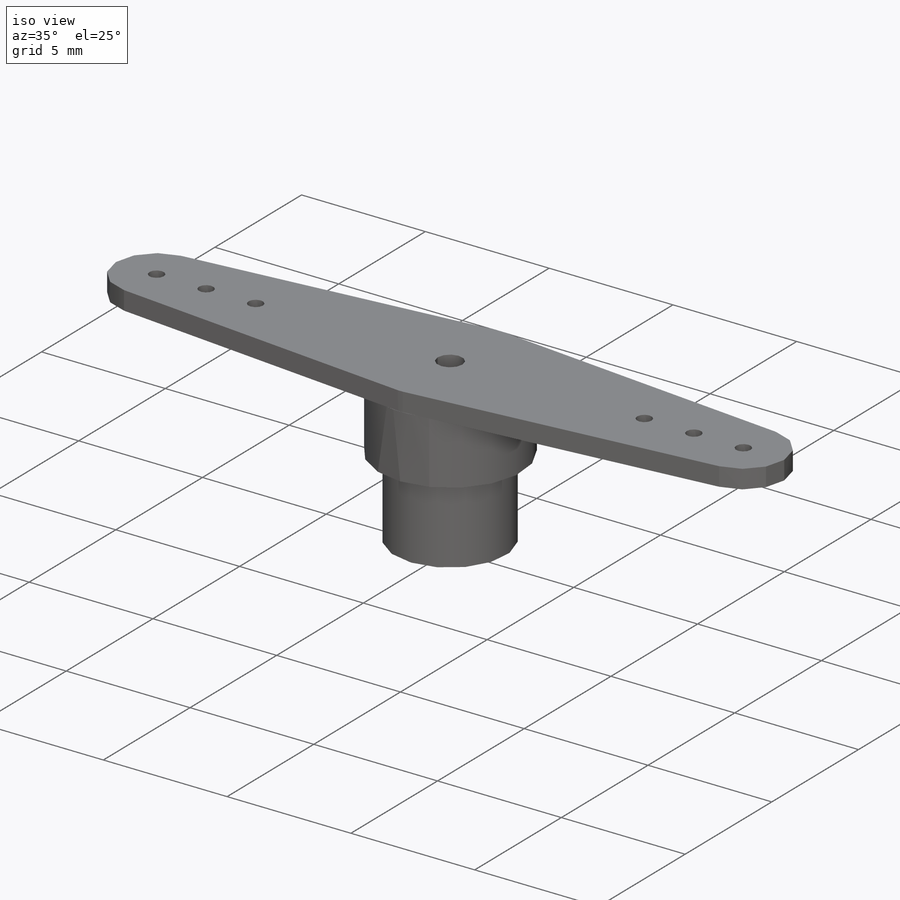
[diagram: iso view]
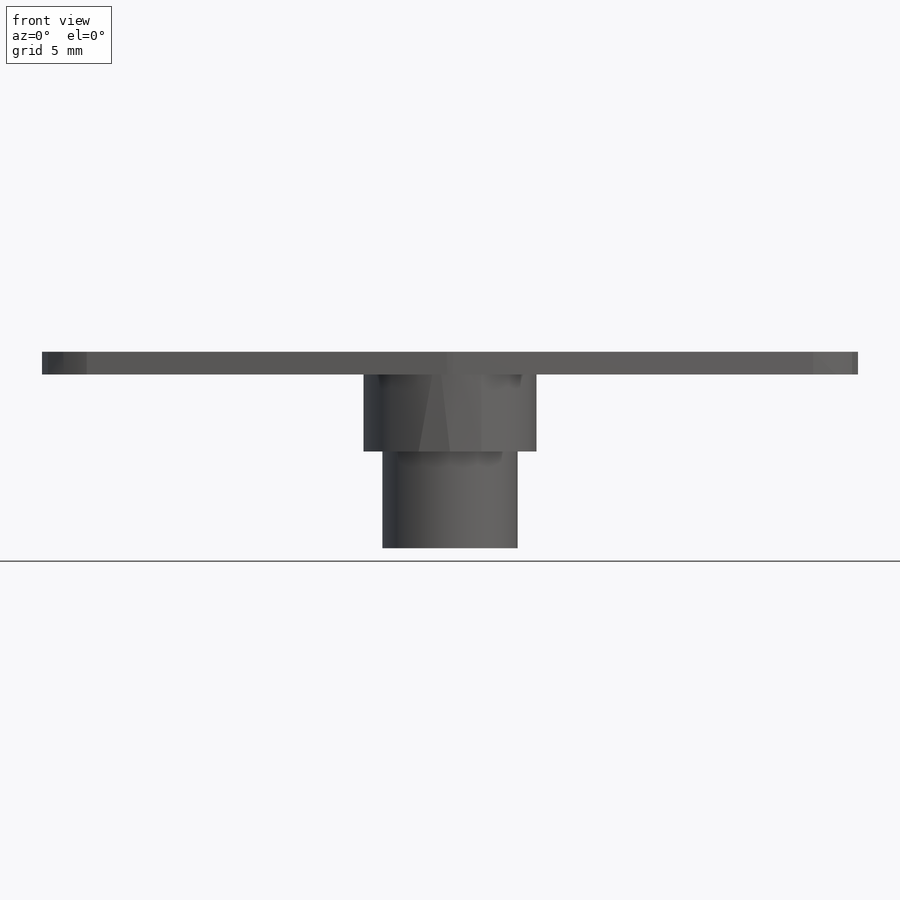
[diagram: front view]
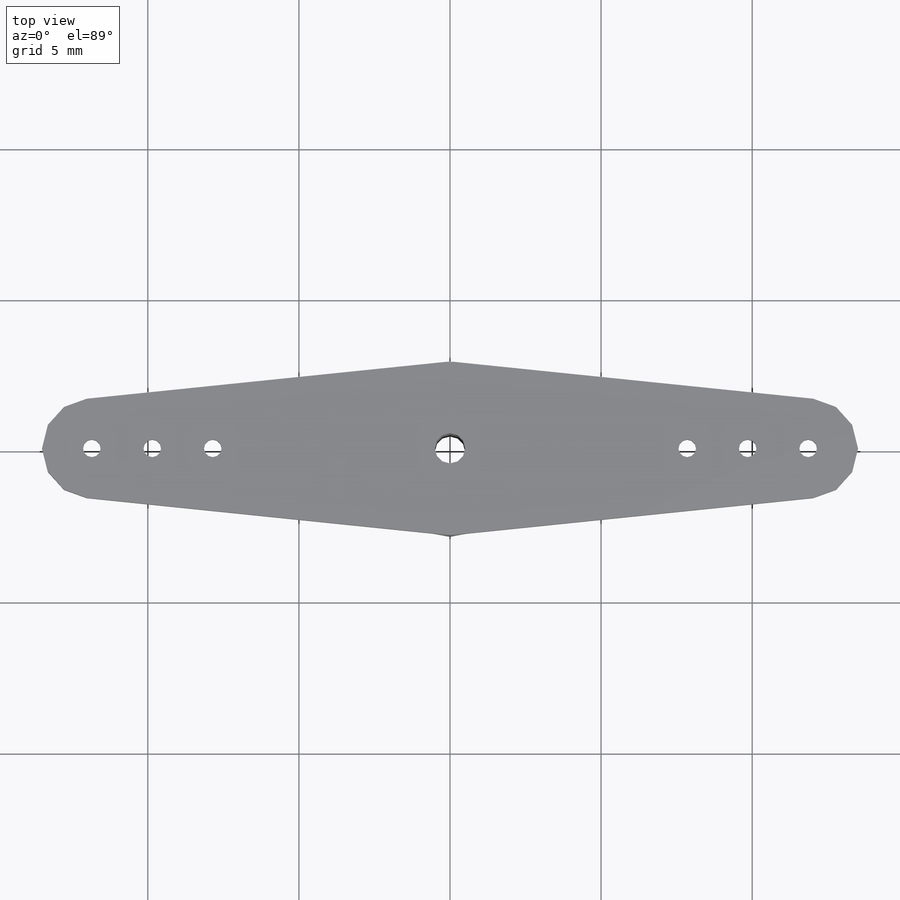
[diagram: top view]
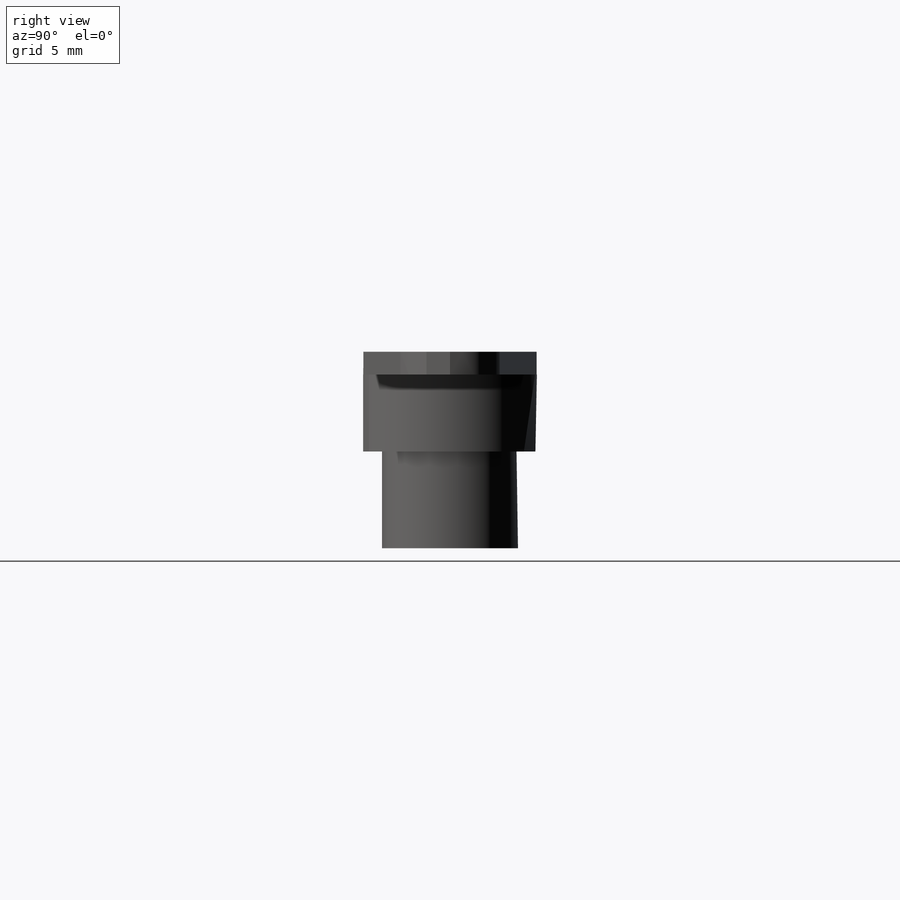
[diagram: right view]
SOLIDWORKS PART (.sldprt)
format: sldprt  version: not decoded by parser v0  size: 218,112 bytes
history: native  units: mm
features: sketch x4, extrude x3, material x1, cut_extrude x1, fillet x1 (+13 scaffold rows collapsed)
feature tree (23):
  scaffold x13  (default folders/planes/origin — collapsed)
  material  "Material <not specified>"
  sketch  "Sketch1"  dims[c1.D1=5.75mm c1.D4=1.65mm c1.D2=13.25mm c1.D3=27.0mm c2.D4=2.875mm c3.D4=~0.792117deg c4.D4=~2.874725mm c4.D2=3.0]
  extrude  "Boss-Extrude1"  Depth=2.55mm
  extrude  "Boss-Extrude2"  [1 undecoded]
  sketch  "Sketch1<4>"  dims[D1=0.75mm]
  sketch  "Sketch2"  dims[D1=4.5mm]
  extrude  "Boss-Extrude3"  Depth=3.2mm
  sketch  "Sketch3"  dims[D1=1.0mm]
  cut_extrude  "Cut-Extrude1"  [1 undecoded]
  fillet  "Fillet1"  Radius=1mm
decode coverage: 7 of 9 modeling features carry decoded parameters
note: ~ marks probable driven/reference dimensions
note: 2 parameter values undecoded
note: suppression state not decoded; provenance and decode notes live in map.json
